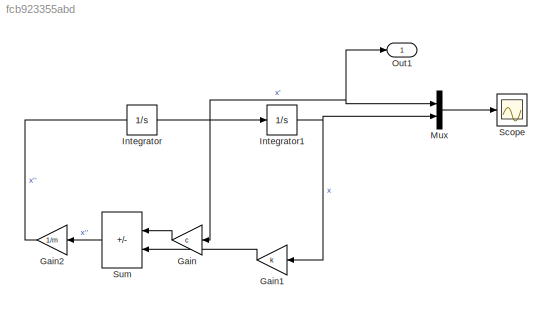
MODEL slx_fcb923355abd
KIND model
CONFIG AbsTol = auto
CONFIG EnableMultiTasking = off
CONFIG FixedStep = auto
CONFIG MaxStep = 0.01
CONFIG MinStep = auto
CONFIG PreLoadFcn = m=10;\nc=10;\nk=30;
CONFIG RelTol = 1e-3
CONFIG SampleTimeConstraint = Unconstrained
CONFIG SolverName = VariableStepAuto
CONFIG StartTime = 0.0
CONFIG StopTime = 15
BLOCK [Gain] Gain
  Gain = c
  NameLocation = top
BLOCK [Gain] Gain1
  Gain = k
  NameLocation = top
BLOCK [Gain] Gain2
  Gain = 1/m
  NameLocation = top
BLOCK [Integrator] Integrator
  Ports = [1, 1]
BLOCK [Integrator] Integrator1
  AttributesFormatString = x0=-5
  InitialCondition = -5
  Ports = [1, 1]
BLOCK [Mux] Mux
  DisplayOption = bar
  Inputs = 2
  Ports = [2, 1]
BLOCK [Outport] Out1
BLOCK [Scope] Scope
  Floating = off
  NumInputPorts = 1
  Ports = [1]
  ScopeSpecificationString = Simulink.scopes.TimeScopeBlockCfg('CurrentConfiguration', extmgr.ConfigurationSet(extmgr.Configuration('Core','General UI',true),extmgr.Configuration('Core','Source UI',true),extmgr.Configuration('Sources','WiredSimulink',true),extmgr.Configuration('Visuals','Time Domain',true,'SerializedDisplays',{struct('MinYLimReal','-6.42842','MaxYLimReal','7.85578','YLabelReal','','MinYLimMag','0.00000','MaxY...<+1355ch>
BLOCK [Sum] Sum
  IconShape = rectangular
  Inputs = |--
  NameLocation = top
  Ports = [2, 1]
LINE Gain1:1 -> Sum:2
LINE Gain2:1 -> Integrator:1
LINE Gain:1 -> Sum:1
NET Integrator1:1 -> Gain1:1, Mux:2
NET Integrator:1 -> Gain:1, Integrator1:1, Mux:1, Out1:1
LINE Mux:1 -> Scope:1
LINE Sum:1 -> Gain2:1
note: NET lines group one-source signal fan-out (src -> all destinations, sorted); 1:1 wires keep LINE
